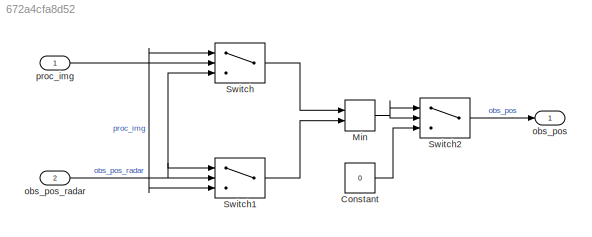
MODEL slx_672a4cfa8d52
KIND model
CONFIG AbsTol = auto
CONFIG EnableMultiTasking = off
CONFIG FixedStep = auto
CONFIG MaxStep = auto
CONFIG MinStep = auto
CONFIG RelTol = 1e-3
CONFIG SampleTimeConstraint = Unconstrained
CONFIG Solver = VariableStepAuto
CONFIG SolverName = VariableStepAuto
CONFIG StartTime = 0.0
CONFIG StopTime = 10.0
BLOCK [Constant] Constant
  Value = 0
BLOCK [MinMax] Min
  InputSameDT = off
  Inputs = 2
  Ports = [2, 1]
  SaturateOnIntegerOverflow = off
BLOCK [Switch] Switch
  Criteria = u2 > Threshold
  InputSameDT = off
  SaturateOnIntegerOverflow = off
BLOCK [Switch] Switch1
  Criteria = u2 > Threshold
  InputSameDT = off
  SaturateOnIntegerOverflow = off
BLOCK [Switch] Switch2
  Criteria = u2 > Threshold
  InputSameDT = off
  SaturateOnIntegerOverflow = off
BLOCK [Outport] obs_pos
  IconDisplay = Port number
BLOCK [Inport] obs_pos_radar
  IconDisplay = Port number
  Port = 2
BLOCK [Inport] proc_img
  IconDisplay = Port number
LINE Constant:1 -> Switch2:3
NET Min:1 -> Switch2:1, Switch2:2
LINE Switch1:1 -> Min:2
LINE Switch2:1 -> obs_pos:1
LINE Switch:1 -> Min:1
NET obs_pos_radar:1 -> Switch1:1, Switch1:2, Switch:3
NET proc_img:1 -> Switch1:3, Switch:1, Switch:2
note: NET lines group one-source signal fan-out (src -> all destinations, sorted); 1:1 wires keep LINE
